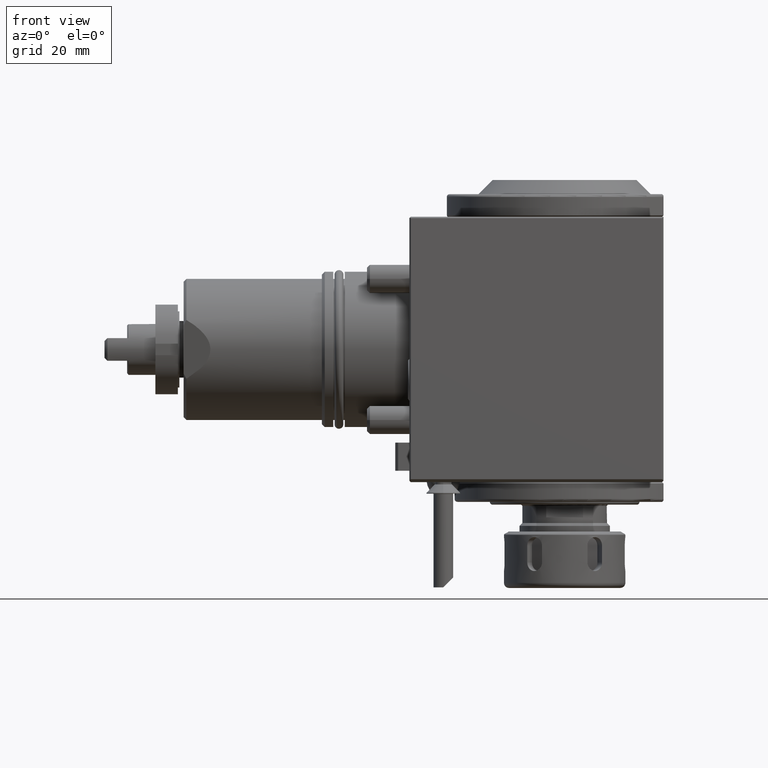
[diagram: clean part render]
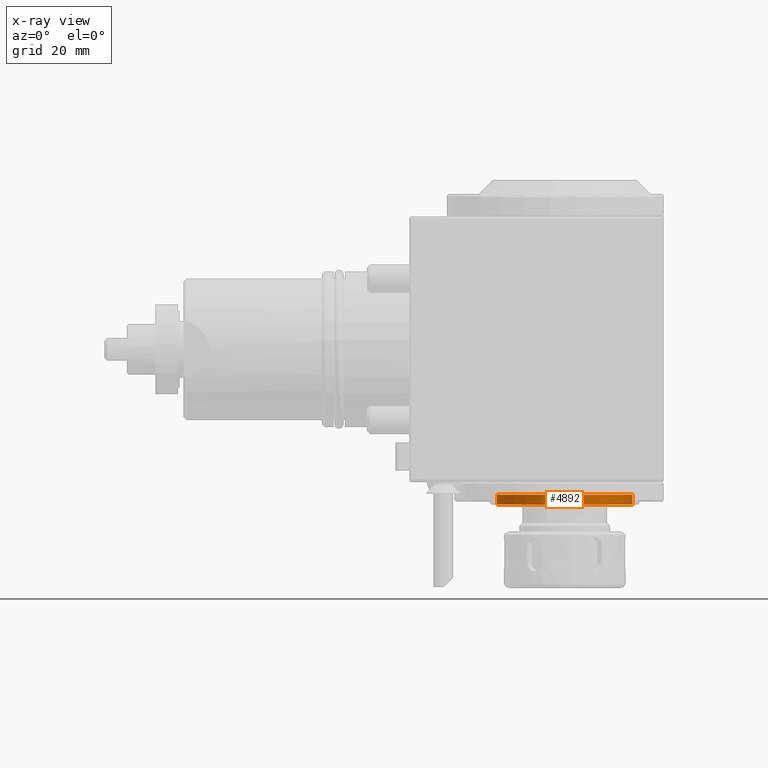
[diagram: x-ray — body ghosted, one internal face saturated and labeled with its STEP entity id]
A machine part, front view, then the same camera in x-ray: the body is ghosted and one INTERNAL B-rep face — a face not visible from any outside direction — is saturated and labeled: STEP entity #4892.
In plain terms, the highlighted cylindrical surface (bore or boss wall) has radius 23.95 mm, axis along (-0, -0, -1).
Its self-contained STEP definition (entity closure, byte-faithful):
#1303 = DIRECTION ( 'NONE',  ( -1.000000000000000000, 2.470337620772187836E-29, 6.953382242743089249E-15 ) ) ;
#2383 = ORIENTED_EDGE ( 'NONE', *, *, #10463, .T. ) ;
#3013 = ORIENTED_EDGE ( 'NONE', *, *, #5501, .F. ) ;
#3025 = VERTEX_POINT ( 'NONE', #3198 ) ;
#3198 = CARTESIAN_POINT ( 'NONE',  ( 31.05000733740968855, -1.798112806435148510E-13, -51.49999762080742016 ) ) ;
#4842 = CARTESIAN_POINT ( 'NONE',  ( 54.99999999999961631, -1.920314653294657231E-13, -54.99999762080738464 ) ) ;
#4892 = ADVANCED_FACE ( 'NONE', ( #11695, #9691 ), #10672, .T. ) ;
#5501 = EDGE_CURVE ( 'NONE', #7867, #7867, #6691, .T. ) ;
#5516 = EDGE_LOOP ( 'NONE', ( #2383 ) ) ;
#5809 = DIRECTION ( 'NONE',  ( -1.000000000000000000, 2.470337620773765418E-29, 6.953382242747529747E-15 ) ) ;
#6480 = DIRECTION ( 'NONE',  ( -6.940284708437133209E-15, -3.491481338843133355E-15, -1.000000000000000000 ) ) ;
#6691 = CIRCLE ( 'NONE', #9385, 23.94999266255930337 ) ;
#6979 = DIRECTION ( 'NONE',  ( -6.940284708437133209E-15, -3.491481338843133355E-15, -1.000000000000000000 ) ) ;
#7173 = CARTESIAN_POINT ( 'NONE',  ( 54.99999999999963762, -1.798112806435154569E-13, -51.49999762080758359 ) ) ;
#7293 = AXIS2_PLACEMENT_3D ( 'NONE', #7173, #8071, #9940 ) ;
#7439 = EDGE_LOOP ( 'NONE', ( #3013 ) ) ;
#7762 = CARTESIAN_POINT ( 'NONE',  ( 54.99999999999929656, -3.497719917061358356E-13, -100.1786799817263898 ) ) ;
#7867 = VERTEX_POINT ( 'NONE', #11437 ) ;
#8071 = DIRECTION ( 'NONE',  ( -6.940284708437133209E-15, -3.491481338843133355E-15, -1.000000000000000000 ) ) ;
#8993 = AXIS2_PLACEMENT_3D ( 'NONE', #7762, #6979, #1303 ) ;
#9385 = AXIS2_PLACEMENT_3D ( 'NONE', #4842, #6480, #5809 ) ;
#9691 = FACE_OUTER_BOUND ( 'NONE', #5516, .T. ) ;
#9940 = DIRECTION ( 'NONE',  ( -1.000000000000000000, 2.470337620770603808E-29, 6.953382242738630607E-15 ) ) ;
#10463 = EDGE_CURVE ( 'NONE', #3025, #3025, #10775, .T. ) ;
#10672 = CYLINDRICAL_SURFACE ( 'NONE', #8993, 23.94999266257459780 ) ;
#10775 = CIRCLE ( 'NONE', #7293, 23.94999266258995263 ) ;
#11437 = CARTESIAN_POINT ( 'NONE',  ( 31.05000733744031649, -1.920314653294651425E-13, -54.99999762080722121 ) ) ;
#11695 = FACE_OUTER_BOUND ( 'NONE', #7439, .T. ) ;